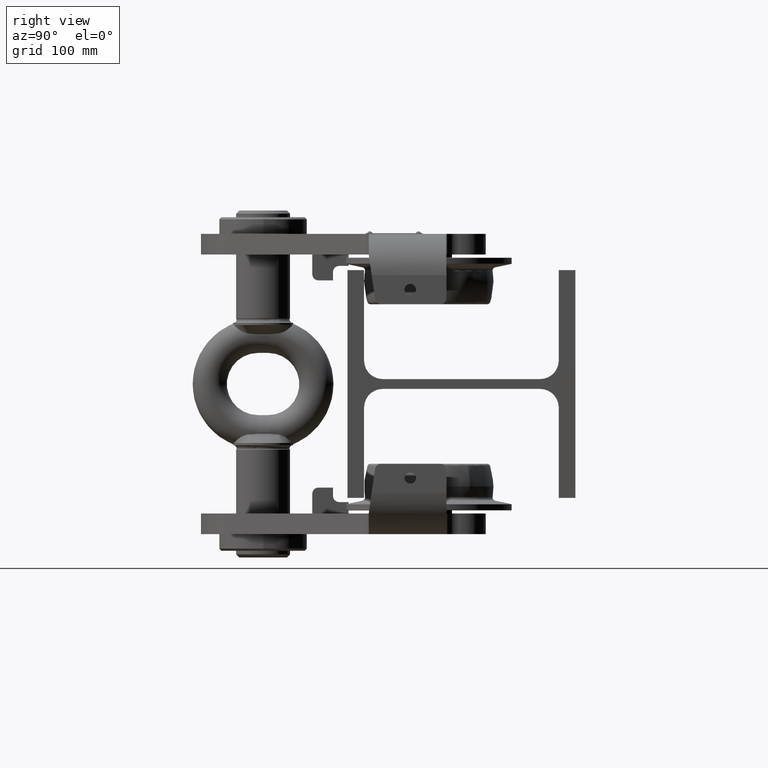
[diagram: clean part render]
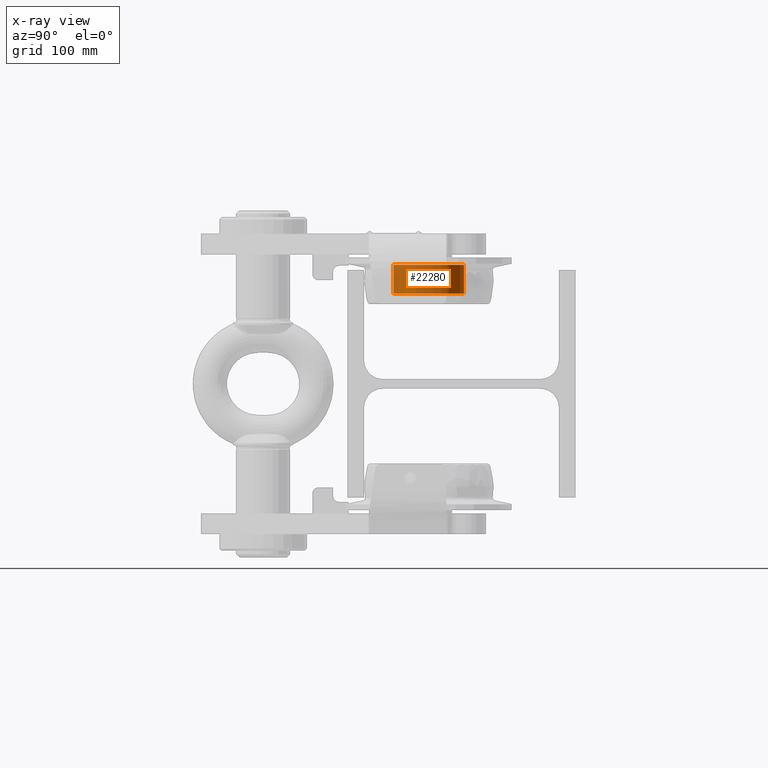
[diagram: x-ray — body ghosted, one internal face saturated and labeled with its STEP entity id]
A machine part, right view, then the same camera in x-ray: the body is ghosted and one INTERNAL B-rep face — a face not visible from any outside direction — is saturated and labeled: STEP entity #22280.
In plain terms, the highlighted cylindrical surface (edge-blend (fillet) strip) has radius 34 mm, axis along (-0, 0, 1).
Its self-contained STEP definition (entity closure, byte-faithful):
#2118 = EDGE_CURVE ( 'NONE', #26302, #14337, #16572, .T. ) ;
#2669 = CIRCLE ( 'NONE', #22937, 34.00000000000000000 ) ;
#3027 = CARTESIAN_POINT ( 'NONE',  ( 104.5000000000002300, -65.49999999999973000, 114.9999999999997700 ) ) ;
#3099 = CARTESIAN_POINT ( 'NONE',  ( 104.5000000000002600, 2.500000000000272700, 86.99999999999977300 ) ) ;
#6368 = CARTESIAN_POINT ( 'NONE',  ( 104.5000000000002400, -31.49999999999973000, 132.0687091825551000 ) ) ;
#6539 = FACE_OUTER_BOUND ( 'NONE', #17325, .T. ) ;
#6610 = LINE ( 'NONE', #9381, #23999 ) ;
#7167 = EDGE_CURVE ( 'NONE', #12708, #24533, #6610, .T. ) ;
#7871 = CARTESIAN_POINT ( 'NONE',  ( 104.5000000000002300, -65.49999999999973000, 132.0687091825551000 ) ) ;
#8669 = AXIS2_PLACEMENT_3D ( 'NONE', #6368, #18218, #36377 ) ;
#9381 = CARTESIAN_POINT ( 'NONE',  ( 104.5000000000002600, 2.500000000000272700, 132.0687091825551000 ) ) ;
#9563 = DIRECTION ( 'NONE',  ( -1.665334536937734800E-016, 5.551115123125785200E-017, 1.000000000000000000 ) ) ;
#11075 = EDGE_CURVE ( 'NONE', #14337, #24533, #11441, .T. ) ;
#11441 = CIRCLE ( 'NONE', #28738, 34.00000000000000000 ) ;
#11618 = ORIENTED_EDGE ( 'NONE', *, *, #2118, .T. ) ;
#12050 = CARTESIAN_POINT ( 'NONE',  ( 104.5000000000002300, -65.49999999999973000, 86.99999999999977300 ) ) ;
#12136 = ORIENTED_EDGE ( 'NONE', *, *, #7167, .F. ) ;
#12708 = VERTEX_POINT ( 'NONE', #3099 ) ;
#13755 = VECTOR ( 'NONE', #13960, 1000.000000000000000 ) ;
#13960 = DIRECTION ( 'NONE',  ( -1.665334536937734800E-016, 5.551115123125785200E-017, 1.000000000000000000 ) ) ;
#14054 = CARTESIAN_POINT ( 'NONE',  ( 104.5000000000002600, 2.500000000000272700, 114.9999999999997700 ) ) ;
#14337 = VERTEX_POINT ( 'NONE', #3027 ) ;
#16572 = LINE ( 'NONE', #7871, #13755 ) ;
#17325 = EDGE_LOOP ( 'NONE', ( #23343, #11618, #22367, #12136 ) ) ;
#18218 = DIRECTION ( 'NONE',  ( -1.665334536937734800E-016, 5.551115123125785200E-017, 1.000000000000000000 ) ) ;
#18257 = DIRECTION ( 'NONE',  ( -1.665334536937734800E-016, 5.551115123125785200E-017, 1.000000000000000000 ) ) ;
#22280 = ADVANCED_FACE ( 'NONE', ( #6539 ), #29069, .F. ) ;
#22367 = ORIENTED_EDGE ( 'NONE', *, *, #11075, .T. ) ;
#22937 = AXIS2_PLACEMENT_3D ( 'NONE', #26864, #18257, #35889 ) ;
#23343 = ORIENTED_EDGE ( 'NONE', *, *, #27820, .F. ) ;
#23999 = VECTOR ( 'NONE', #32961, 1000.000000000000000 ) ;
#24533 = VERTEX_POINT ( 'NONE', #14054 ) ;
#26302 = VERTEX_POINT ( 'NONE', #12050 ) ;
#26864 = CARTESIAN_POINT ( 'NONE',  ( 104.5000000000002400, -31.49999999999973000, 86.99999999999977300 ) ) ;
#27502 = CARTESIAN_POINT ( 'NONE',  ( 104.5000000000002400, -31.49999999999973000, 114.9999999999997700 ) ) ;
#27820 = EDGE_CURVE ( 'NONE', #26302, #12708, #2669, .T. ) ;
#28738 = AXIS2_PLACEMENT_3D ( 'NONE', #27502, #9563, #30510 ) ;
#29069 = CYLINDRICAL_SURFACE ( 'NONE', #8669, 34.00000000000000000 ) ;
#30510 = DIRECTION ( 'NONE',  ( 4.081702296416016500E-016, 1.000000000000000000, 0.0000000000000000000 ) ) ;
#32961 = DIRECTION ( 'NONE',  ( -1.665334536937734800E-016, 5.551115123125785200E-017, 1.000000000000000000 ) ) ;
#35889 = DIRECTION ( 'NONE',  ( 4.081702296416016500E-016, 1.000000000000000000, 0.0000000000000000000 ) ) ;
#36377 = DIRECTION ( 'NONE',  ( 4.081702296416016500E-016, 1.000000000000000000, 0.0000000000000000000 ) ) ;